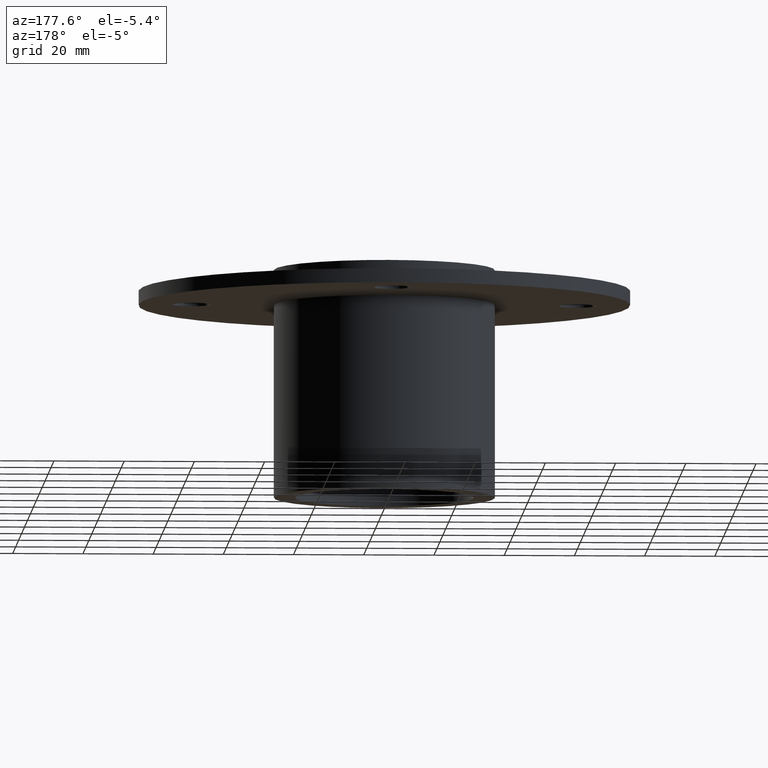
[diagram: clean part render]
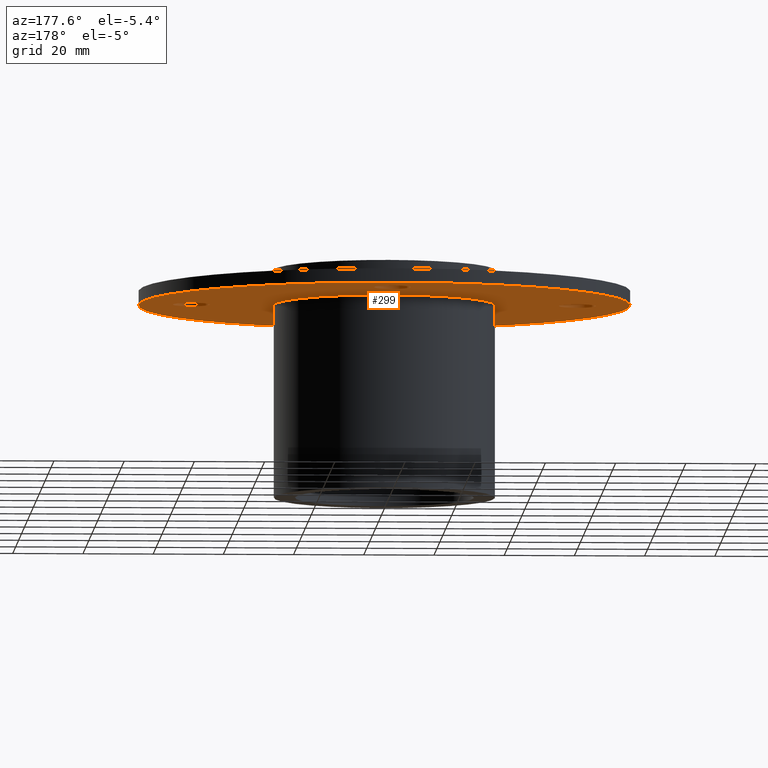
[diagram: same view with one face highlighted and labeled with its STEP entity id]
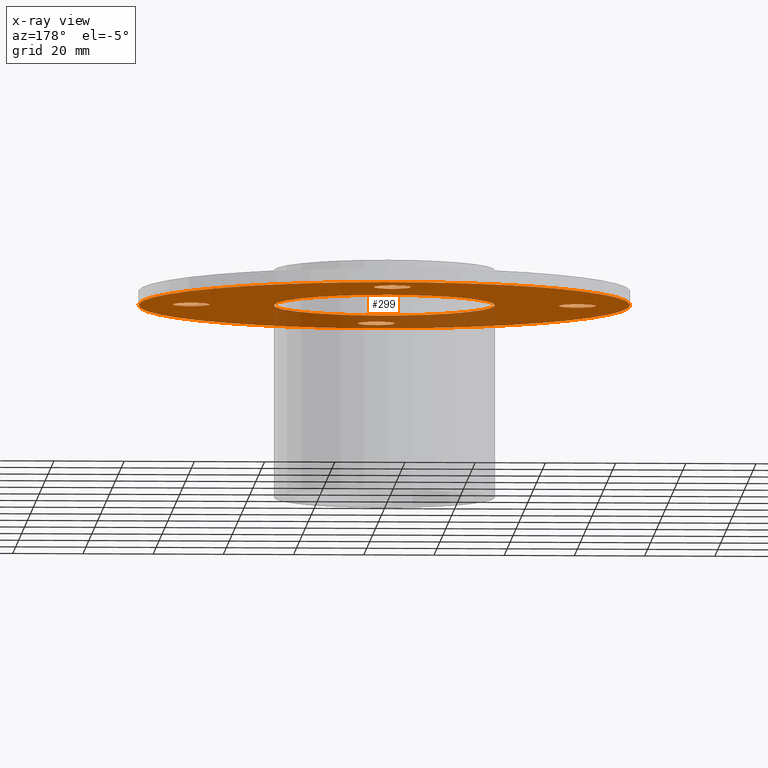
[diagram: x-ray of the same camera — body ghosted, the highlighted face saturated]
A machine part, auxiliary view. The second image highlights one B-rep face of the part: STEP entity #299.
The next image is the same camera in x-ray: the body ghosted, the highlighted face saturated — about 22% of this face is hidden behind the body in this view.
In plain terms, the highlighted planar face has unit normal (0, 0, 1).
Its self-contained STEP definition (entity closure, byte-faithful):
#73=CARTESIAN_POINT('',(-5.250000000000007,-55.0,-10.0));
#74=VERTEX_POINT('',#73);
#75=CARTESIAN_POINT('',(-6.735557E-015,-55.0,-10.0));
#76=DIRECTION('',(0.0,0.0,1.0));
#77=DIRECTION('',(1.0,0.0,0.0));
#78=AXIS2_PLACEMENT_3D('',#75,#76,#77);
#79=CIRCLE('',#78,5.25);
#80=EDGE_CURVE('',#74,#74,#79,.T.);
#101=CARTESIAN_POINT('',(-5.25,55.0,-10.0));
#102=VERTEX_POINT('',#101);
#103=CARTESIAN_POINT('',(0.0,55.0,-10.0));
#104=DIRECTION('',(0.0,0.0,1.0));
#105=DIRECTION('',(1.0,0.0,0.0));
#106=AXIS2_PLACEMENT_3D('',#103,#104,#105);
#107=CIRCLE('',#106,5.25);
#108=EDGE_CURVE('',#102,#102,#107,.T.);
#129=CARTESIAN_POINT('',(49.75,-1.074628E-014,-10.0));
#130=VERTEX_POINT('',#129);
#131=CARTESIAN_POINT('',(55.0,-1.010334E-014,-10.0));
#132=DIRECTION('',(0.0,0.0,1.0));
#133=DIRECTION('',(1.0,0.0,0.0));
#134=AXIS2_PLACEMENT_3D('',#131,#132,#133);
#135=CIRCLE('',#134,5.25);
#136=EDGE_CURVE('',#130,#130,#135,.T.);
#157=CARTESIAN_POINT('',(-60.25,2.724839E-015,-10.0));
#158=VERTEX_POINT('',#157);
#159=CARTESIAN_POINT('',(-55.0,3.367779E-015,-10.0));
#160=DIRECTION('',(0.0,0.0,1.0));
#161=DIRECTION('',(1.0,0.0,0.0));
#162=AXIS2_PLACEMENT_3D('',#159,#160,#161);
#163=CIRCLE('',#162,5.25);
#164=EDGE_CURVE('',#158,#158,#163,.T.);
#260=CARTESIAN_POINT('',(-4.097914E-015,-1.691768E-015,-10.0));
#261=DIRECTION('',(0.0,0.0,1.0));
#262=DIRECTION('',(1.0,0.0,0.0));
#263=AXIS2_PLACEMENT_3D('',#260,#261,#262);
#264=PLANE('',#263);
#265=CARTESIAN_POINT('',(70.0,8.572528E-015,-10.0));
#266=VERTEX_POINT('',#265);
#267=CARTESIAN_POINT('',(0.0,0.0,-10.0));
#268=DIRECTION('',(0.0,0.0,-1.0));
#269=DIRECTION('',(-1.0,0.0,0.0));
#270=AXIS2_PLACEMENT_3D('',#267,#268,#269);
#271=CIRCLE('',#270,70.0);
#272=EDGE_CURVE('',#266,#266,#271,.T.);
#273=ORIENTED_EDGE('',*,*,#272,.T.);
#274=EDGE_LOOP('',(#273));
#275=FACE_OUTER_BOUND('',#274,.T.);
#276=ORIENTED_EDGE('',*,*,#80,.T.);
#277=EDGE_LOOP('',(#276));
#278=FACE_BOUND('',#277,.T.);
#279=ORIENTED_EDGE('',*,*,#108,.T.);
#280=EDGE_LOOP('',(#279));
#281=FACE_BOUND('',#280,.T.);
#282=ORIENTED_EDGE('',*,*,#136,.T.);
#283=EDGE_LOOP('',(#282));
#284=FACE_BOUND('',#283,.T.);
#285=ORIENTED_EDGE('',*,*,#164,.T.);
#286=EDGE_LOOP('',(#285));
#287=FACE_BOUND('',#286,.T.);
#288=CARTESIAN_POINT('',(31.500000000000014,3.857637E-015,-10.0));
#289=VERTEX_POINT('',#288);
#290=CARTESIAN_POINT('',(0.0,0.0,-10.0));
#291=DIRECTION('',(0.0,0.0,-1.0));
#292=DIRECTION('',(-1.0,0.0,0.0));
#293=AXIS2_PLACEMENT_3D('',#290,#291,#292);
#294=CIRCLE('',#293,31.500000000000014);
#295=EDGE_CURVE('',#289,#289,#294,.T.);
#296=ORIENTED_EDGE('',*,*,#295,.F.);
#297=EDGE_LOOP('',(#296));
#298=FACE_BOUND('',#297,.T.);
#299=ADVANCED_FACE('',(#275,#278,#281,#284,#287,#298),#264,.F.);